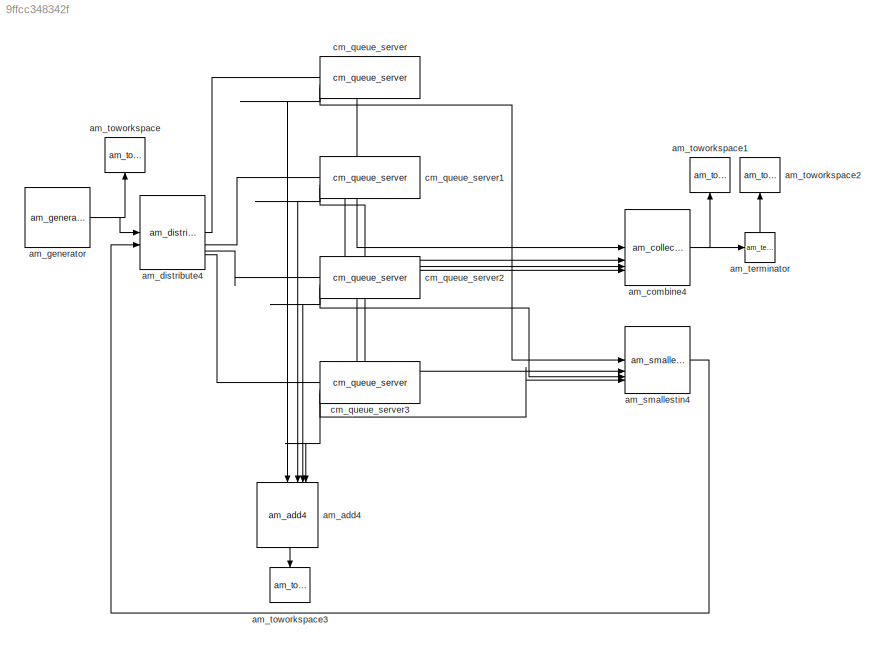
MODEL slx_9ffcc348342f
KIND model
CONFIG AbsTol = auto
CONFIG EnableMultiTasking = off
CONFIG FixedStep = auto
CONFIG MaxStep = auto
CONFIG MinStep = auto
CONFIG RelTol = 1e-3
CONFIG SampleTimeConstraint = Unconstrained
CONFIG SolverName = VariableStepAuto
CONFIG StartTime = 0.0
CONFIG StopTime = 10.0
BLOCK [Reference] am_add4  REF=NSA_DEVS_MATH_OPERATIONS/am_add4
  NameLocation = left
  SourceBlock = NSA_DEVS_MATH_OPERATIONS/am_add4
  SourceProductName = Math Operations
  SourceType = Add4
BLOCK [Reference] am_combine4  REF=NSA_DEVS_ROUTING/am_collect4
  SourceBlock = NSA_DEVS_ROUTING/am_collect4
  SourceProductName = Routing
  SourceType = Collect4
BLOCK [Reference] am_distribute4  REF=NSA_DEVS_ROUTING/am_distribute4
  SourceBlock = NSA_DEVS_ROUTING/am_distribute4
  SourceProductName = Routing
  SourceType = Distribute4
BLOCK [Reference] am_generator  REF=NSA_DEVS_SOURCES/am_generator
  SourceBlock = NSA_DEVS_SOURCES/am_generator
  SourceProductName = Sources
  SourceType = Generator
BLOCK [Reference] am_smallestin4  REF=NSA_DEVS_ROUTING/am_smallestin4
  SourceBlock = NSA_DEVS_ROUTING/am_smallestin4
  SourceProductName = Routing
  SourceType = Smallestin4
BLOCK [Reference] am_terminator  REF=NSA_DEVS_LOGISTICS/am_terminator
  SourceBlock = NSA_DEVS_LOGISTICS/am_terminator
  SourceProductName = Logistics
  SourceType = Terminator
BLOCK [Reference] am_toworkspace  REF=NSA_DEVS_SINKS/am_toworkspace
  NameLocation = right
  SourceBlock = NSA_DEVS_SINKS/am_toworkspace
  SourceProductName = Sinks
  SourceType = ToWorkspace
BLOCK [Reference] am_toworkspace1  REF=NSA_DEVS_SINKS/am_toworkspace
  NameLocation = right
  SourceBlock = NSA_DEVS_SINKS/am_toworkspace
  SourceProductName = Sinks
  SourceType = ToWorkspace
BLOCK [Reference] am_toworkspace2  REF=NSA_DEVS_SINKS/am_toworkspace
  NameLocation = right
  SourceBlock = NSA_DEVS_SINKS/am_toworkspace
  SourceProductName = Sinks
  SourceType = ToWorkspace
BLOCK [Reference] am_toworkspace3  REF=NSA_DEVS_SINKS/am_toworkspace
  NameLocation = left
  SourceBlock = NSA_DEVS_SINKS/am_toworkspace
  SourceProductName = Sinks
  SourceType = ToWorkspace
BLOCK [Reference] cm_queue_server  REF=NSA_DEVS_LOGISTICS/cm_queue_server
  SourceBlock = NSA_DEVS_LOGISTICS/cm_queue_server
  SourceProductName = Logistics
  SourceType = QueueServer
BLOCK [Reference] cm_queue_server1  REF=NSA_DEVS_LOGISTICS/cm_queue_server
  SourceBlock = NSA_DEVS_LOGISTICS/cm_queue_server
  SourceProductName = Logistics
  SourceType = QueueServer
BLOCK [Reference] cm_queue_server2  REF=NSA_DEVS_LOGISTICS/cm_queue_server
  SourceBlock = NSA_DEVS_LOGISTICS/cm_queue_server
  SourceProductName = Logistics
  SourceType = QueueServer
BLOCK [Reference] cm_queue_server3  REF=NSA_DEVS_LOGISTICS/cm_queue_server
  SourceBlock = NSA_DEVS_LOGISTICS/cm_queue_server
  SourceProductName = Logistics
  SourceType = QueueServer
LINE am_add4:1 -> am_toworkspace3:1
NET am_combine4:1 -> am_terminator:1, am_toworkspace1:1
LINE am_distribute4:1 -> cm_queue_server:1
LINE am_distribute4:2 -> cm_queue_server1:1
LINE am_distribute4:3 -> cm_queue_server2:1
LINE am_distribute4:4 -> cm_queue_server3:1
NET am_generator:1 -> am_distribute4:1, am_toworkspace:1
LINE am_smallestin4:1 -> am_distribute4:2
LINE am_terminator:1 -> am_toworkspace2:1
LINE cm_queue_server1:1 -> am_combine4:2
LINE cm_queue_server1:2 -> am_add4:2
LINE cm_queue_server1:3 -> am_smallestin4:2
LINE cm_queue_server2:1 -> am_combine4:3
LINE cm_queue_server2:2 -> am_add4:3
LINE cm_queue_server2:3 -> am_smallestin4:3
LINE cm_queue_server3:1 -> am_combine4:4
LINE cm_queue_server3:2 -> am_add4:4
LINE cm_queue_server3:3 -> am_smallestin4:4
LINE cm_queue_server:1 -> am_combine4:1
LINE cm_queue_server:2 -> am_add4:1
LINE cm_queue_server:3 -> am_smallestin4:1
note: NET lines group one-source signal fan-out (src -> all destinations, sorted); 1:1 wires keep LINE
